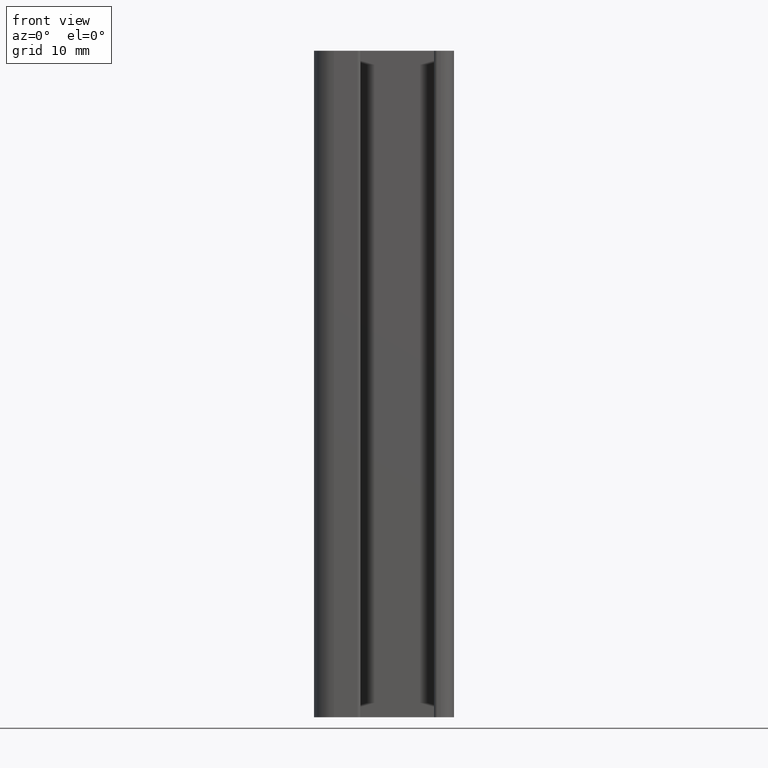
[diagram: clean part render]
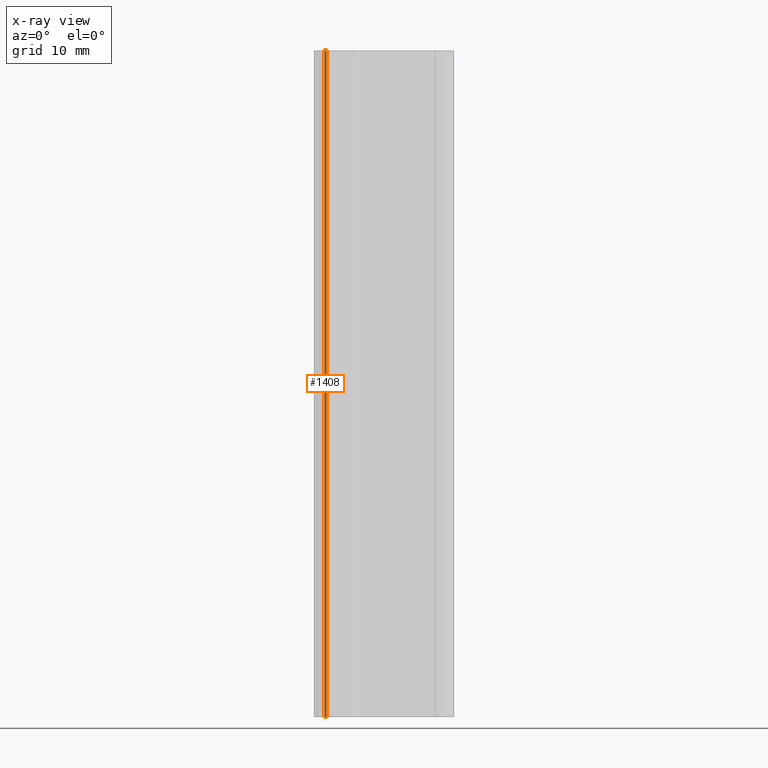
[diagram: x-ray — body ghosted, one internal face saturated and labeled with its STEP entity id]
A machine part, front view, then the same camera in x-ray: the body is ghosted and one INTERNAL B-rep face — a face not visible from any outside direction — is saturated and labeled: STEP entity #1408.
In plain terms, the highlighted planar face has unit normal (-0.7071, -0.7071, 0).
Its self-contained STEP definition (entity closure, byte-faithful):
#38=PLANE('',#1502);
#96=FACE_OUTER_BOUND('',#168,.T.);
#168=EDGE_LOOP('',(#1057,#1058,#1059,#1060));
#285=LINE('',#2167,#447);
#286=LINE('',#2170,#448);
#287=LINE('',#2172,#449);
#288=LINE('',#2173,#450);
#447=VECTOR('',#1749,100.);
#448=VECTOR('',#1752,0.424264068710866);
#449=VECTOR('',#1753,0.424264068710866);
#450=VECTOR('',#1754,100.);
#647=VERTEX_POINT('',#2163);
#648=VERTEX_POINT('',#2165);
#649=VERTEX_POINT('',#2169);
#650=VERTEX_POINT('',#2171);
#817=EDGE_CURVE('',#648,#647,#285,.T.);
#818=EDGE_CURVE('',#647,#649,#286,.T.);
#819=EDGE_CURVE('',#650,#648,#287,.T.);
#820=EDGE_CURVE('',#650,#649,#288,.T.);
#1057=ORIENTED_EDGE('',*,*,#818,.F.);
#1058=ORIENTED_EDGE('',*,*,#817,.F.);
#1059=ORIENTED_EDGE('',*,*,#819,.F.);
#1060=ORIENTED_EDGE('',*,*,#820,.T.);
#1408=ADVANCED_FACE('',(#96),#38,.F.);
#1502=AXIS2_PLACEMENT_3D('',#2168,#1750,#1751);
#1749=DIRECTION('',(0.,0.,1.));
#1750=DIRECTION('center_axis',(-0.707106781182771,-0.707106781190324,0.));
#1751=DIRECTION('ref_axis',(0.707106781190324,-0.707106781182771,0.));
#1752=DIRECTION('',(-0.707106781190324,0.707106781182771,0.));
#1753=DIRECTION('',(0.707106781190324,-0.707106781182771,0.));
#1754=DIRECTION('',(0.,0.,1.));
#2163=CARTESIAN_POINT('',(-13.1000000000004,5.55000000000007,100.));
#2165=CARTESIAN_POINT('',(-13.1000000000004,5.55000000000007,0.));
#2167=CARTESIAN_POINT('',(-13.1000000000004,5.55000000000007,0.));
#2168=CARTESIAN_POINT('Origin',(-13.4000000000012,5.84999999999772,0.));
#2169=CARTESIAN_POINT('',(-13.4000000000012,5.84999999999772,100.));
#2170=CARTESIAN_POINT('',(-9.71249999997749,2.16250000001338,100.));
#2171=CARTESIAN_POINT('',(-13.4000000000012,5.84999999999772,0.));
#2172=CARTESIAN_POINT('',(-9.71249999997749,2.16250000001338,0.));
#2173=CARTESIAN_POINT('',(-13.4000000000012,5.84999999999772,0.));